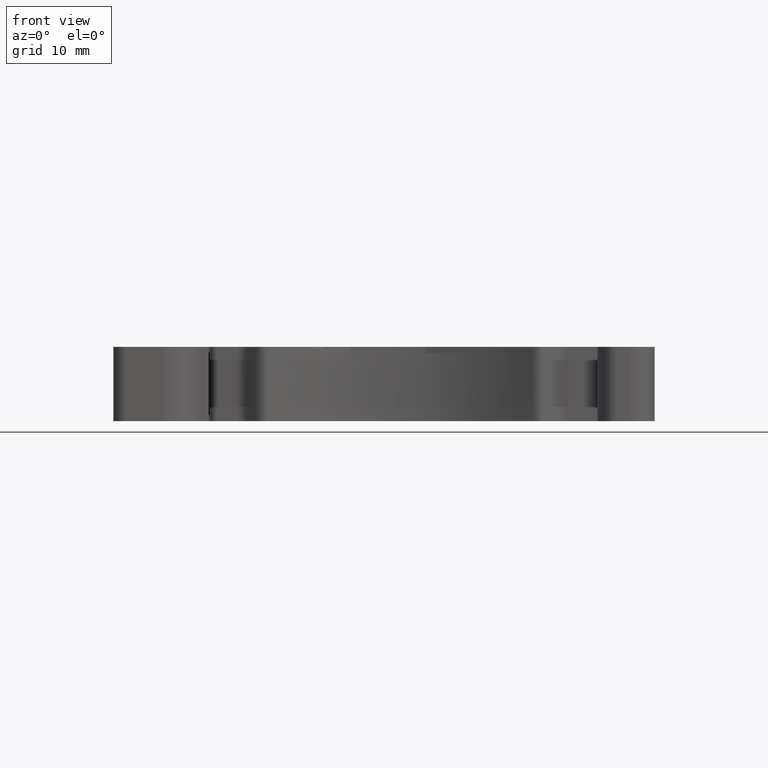
[diagram: clean part render]
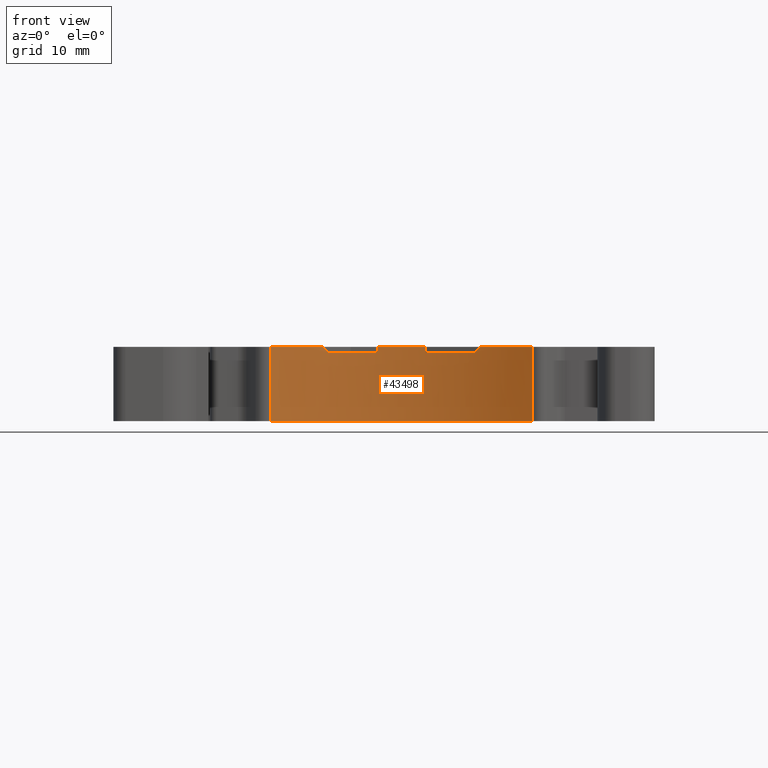
[diagram: same view with one face highlighted and labeled with its STEP entity id]
A machine part, front view. The second image highlights one B-rep face of the part: STEP entity #43498.
In plain terms, the highlighted cylindrical surface (partial cylindrical patch) has radius 20 mm, axis along (0, 0, 1).
Its self-contained STEP definition (entity closure, byte-faithful):
#225=CYLINDRICAL_SURFACE('',#46076,20.);
#397=CIRCLE('',#43703,37.0949419409123);
#398=CIRCLE('',#43705,20.);
#401=CIRCLE('',#43728,37.1158621798378);
#402=CIRCLE('',#43730,20.);
#728=CIRCLE('',#46077,20.);
#729=CIRCLE('',#46078,20.);
#730=CIRCLE('',#46079,20.);
#731=CIRCLE('',#46080,20.);
#12432=ORIENTED_EDGE('',*,*,#19316,.F.);
#12433=ORIENTED_EDGE('',*,*,#18973,.T.);
#12434=ORIENTED_EDGE('',*,*,#19317,.F.);
#12435=ORIENTED_EDGE('',*,*,#13397,.T.);
#12436=ORIENTED_EDGE('',*,*,#13400,.F.);
#12437=ORIENTED_EDGE('',*,*,#13505,.T.);
#12438=ORIENTED_EDGE('',*,*,#19318,.F.);
#12439=ORIENTED_EDGE('',*,*,#13502,.T.);
#12440=ORIENTED_EDGE('',*,*,#13483,.F.);
#12441=ORIENTED_EDGE('',*,*,#13480,.T.);
#12442=ORIENTED_EDGE('',*,*,#19319,.F.);
#12443=ORIENTED_EDGE('',*,*,#19314,.F.);
#13397=EDGE_CURVE('',#19548,#19550,#397,.T.);
#13400=EDGE_CURVE('',#19552,#19550,#398,.T.);
#13480=EDGE_CURVE('',#19616,#19619,#401,.T.);
#13483=EDGE_CURVE('',#19616,#19622,#402,.T.);
#13502=EDGE_CURVE('',#19636,#19622,#23762,.T.);
#13505=EDGE_CURVE('',#19552,#19638,#23765,.T.);
#18973=EDGE_CURVE('',#23278,#23279,#28939,.T.);
#19314=EDGE_CURVE('',#23498,#23499,#29174,.T.);
#19316=EDGE_CURVE('',#23278,#23498,#728,.T.);
#19317=EDGE_CURVE('',#19548,#23279,#729,.T.);
#19318=EDGE_CURVE('',#19636,#19638,#730,.T.);
#19319=EDGE_CURVE('',#23499,#19619,#731,.T.);
#19548=VERTEX_POINT('',#57490);
#19550=VERTEX_POINT('',#57494);
#19552=VERTEX_POINT('',#57500);
#19616=VERTEX_POINT('',#57672);
#19619=VERTEX_POINT('',#57677);
#19622=VERTEX_POINT('',#57685);
#19636=VERTEX_POINT('',#57721);
#19638=VERTEX_POINT('',#57728);
#23278=VERTEX_POINT('',#68968);
#23279=VERTEX_POINT('',#68969);
#23498=VERTEX_POINT('',#69693);
#23499=VERTEX_POINT('',#69695);
#23762=LINE('',#57723,#29456);
#23765=LINE('',#57729,#29459);
#28939=LINE('',#68967,#34633);
#29174=LINE('',#69694,#34868);
#29456=VECTOR('',#46714,1000.);
#29459=VECTOR('',#46719,1000.);
#34633=VECTOR('',#56147,1000.);
#34868=VECTOR('',#56800,1000.);
#37109=EDGE_LOOP('',(#12432,#12433,#12434,#12435,#12436,#12437,#12438,#12439,
#12440,#12441,#12442,#12443));
#39365=FACE_BOUND('',#37109,.T.);
#43498=ADVANCED_FACE('',(#39365),#225,.F.);
#43703=AXIS2_PLACEMENT_3D('',#57495,#46553,#46554);
#43705=AXIS2_PLACEMENT_3D('',#57501,#46559,#46560);
#43728=AXIS2_PLACEMENT_3D('',#57678,#46676,#46677);
#43730=AXIS2_PLACEMENT_3D('',#57684,#46682,#46683);
#46076=AXIS2_PLACEMENT_3D('',#69697,#56803,#56804);
#46077=AXIS2_PLACEMENT_3D('',#69698,#56805,#56806);
#46078=AXIS2_PLACEMENT_3D('',#69699,#56807,#56808);
#46079=AXIS2_PLACEMENT_3D('',#69700,#56809,#56810);
#46080=AXIS2_PLACEMENT_3D('',#69701,#56811,#56812);
#46553=DIRECTION('',(-0.707106781186532,9.6436893540336E-14,0.707106781186563));
#46554=DIRECTION('',(0.166956711150559,0.971725739704174,0.166956711150419));
#46559=DIRECTION('',(0.,0.,-1.));
#46560=DIRECTION('',(0.0980720676109952,0.995179315276651,0.));
#46676=DIRECTION('',(0.707106781186532,9.65113366191217E-14,0.707106781186563));
#46677=DIRECTION('',(-0.152865046480783,0.976352679685419,0.152865046480643));
#46682=DIRECTION('',(0.,0.,-1.));
#46683=DIRECTION('',(-0.298855864777996,0.954298261597388,0.));
#46714=DIRECTION('',(-1.025846074754E-13,0.,-1.));
#46719=DIRECTION('',(-1.127986593019E-13,0.,1.));
#56147=DIRECTION('',(1.244847576569E-11,-8.565971247439E-12,1.));
#56800=DIRECTION('',(4.330233803587E-12,3.279562413988E-12,1.));
#56803=DIRECTION('',(0.,0.,1.));
#56804=DIRECTION('',(1.,0.,0.));
#56805=DIRECTION('',(0.,0.,1.));
#56806=DIRECTION('',(0.538692571296678,0.842502411646266,0.));
#56807=DIRECTION('',(0.,0.,-1.));
#56808=DIRECTION('',(0.324999999999996,0.945714015968888,0.));
#56809=DIRECTION('',(0.,0.,-1.));
#56810=DIRECTION('',(-0.0969279323889867,0.995291402516266,0.));
#56811=DIRECTION('',(0.,0.,-1.));
#56812=DIRECTION('',(-0.538692571308503,0.842502411638705,0.));
#57490=CARTESIAN_POINT('',(6.5,-3.735716143792,2.5));
#57494=CARTESIAN_POINT('',(6.,-3.571212434831,2.));
#57495=CARTESIAN_POINT('',(0.306750493224337,-39.7818260406084,-3.69324950677047));
#57500=CARTESIAN_POINT('',(1.96144135222,-2.746410157637,2.));
#57501=CARTESIAN_POINT('',(0.,-22.64999646317,2.));
#57672=CARTESIAN_POINT('',(-5.97711729556,-3.564031231222,2.));
#57677=CARTESIAN_POINT('',(-6.47711729556,-3.727867842437,2.5));
#57678=CARTESIAN_POINT('',(-0.303399298264746,-39.8022027293413,-3.67371799729006));
#57684=CARTESIAN_POINT('',(0.,-22.64999646317,2.));
#57685=CARTESIAN_POINT('',(-1.93855864778,-2.744168412845,2.));
#57721=CARTESIAN_POINT('',(-1.93855864778,-2.744168412845,2.5));
#57723=CARTESIAN_POINT('',(-1.93855864778,-2.744168412845,2.5));
#57728=CARTESIAN_POINT('',(1.96144135222,-2.746410157637,2.5));
#57729=CARTESIAN_POINT('',(1.96144135222,-2.746410157637,2.));
#68967=CARTESIAN_POINT('',(10.7738514264,-5.799948230541,-3.6));
#68968=CARTESIAN_POINT('',(10.77385142594,-5.79994823023,-3.6));
#68969=CARTESIAN_POINT('',(10.77385142617,-5.799948230394,2.5));
#69693=CARTESIAN_POINT('',(-10.77385142625,-5.79994823045,-3.6));
#69694=CARTESIAN_POINT('',(-10.77385142654,-5.799948230628,-3.6));
#69695=CARTESIAN_POINT('',(-10.77385142618,-5.799948230382,2.5));
#69697=CARTESIAN_POINT('',(0.,-22.64999646317,-2.5));
#69698=CARTESIAN_POINT('',(0.,-22.64999646317,-3.6));
#69699=CARTESIAN_POINT('',(0.,-22.64999646317,2.5));
#69700=CARTESIAN_POINT('',(0.,-22.64999646317,2.5));
#69701=CARTESIAN_POINT('',(0.,-22.64999646317,2.5));